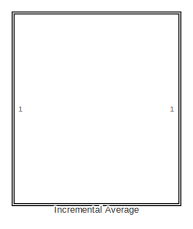
[diagram: root canvas - part 1/2, top center region]
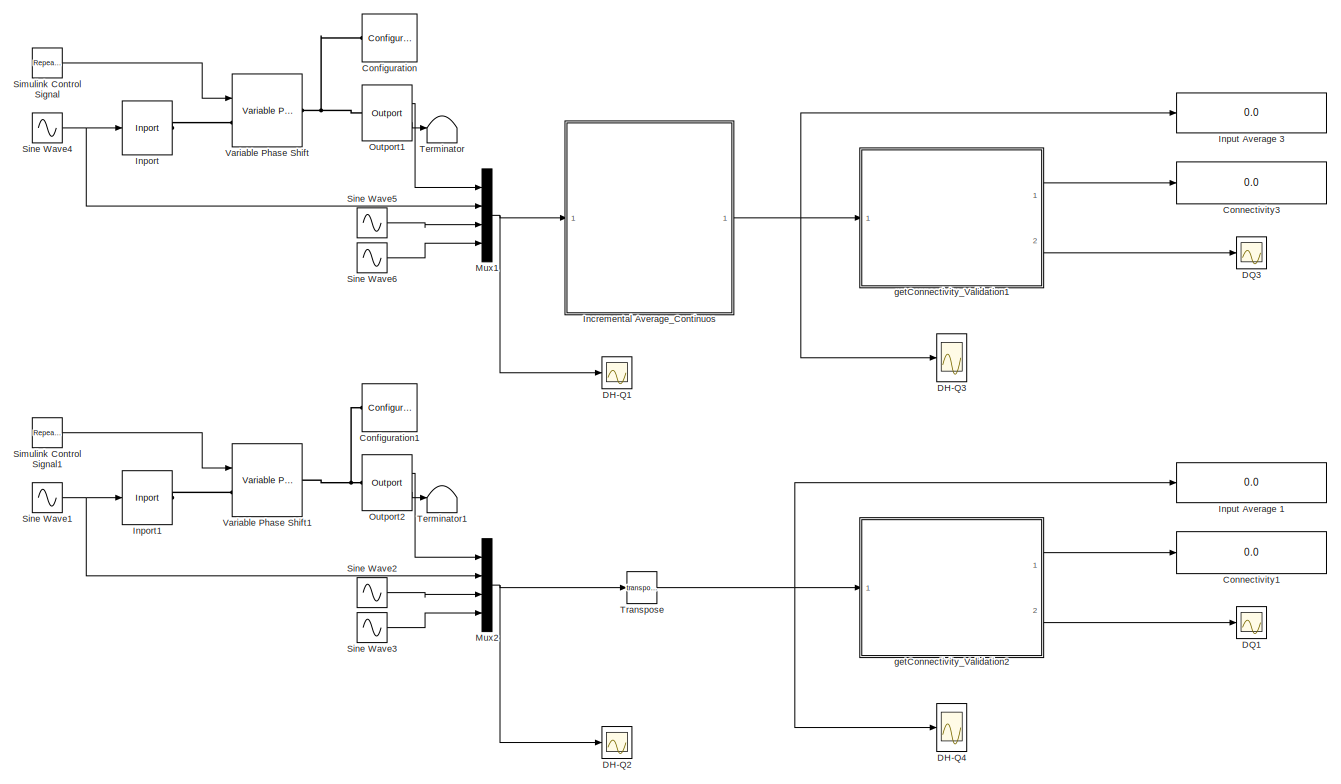
[diagram: root canvas - part 2/2, most of the canvas]
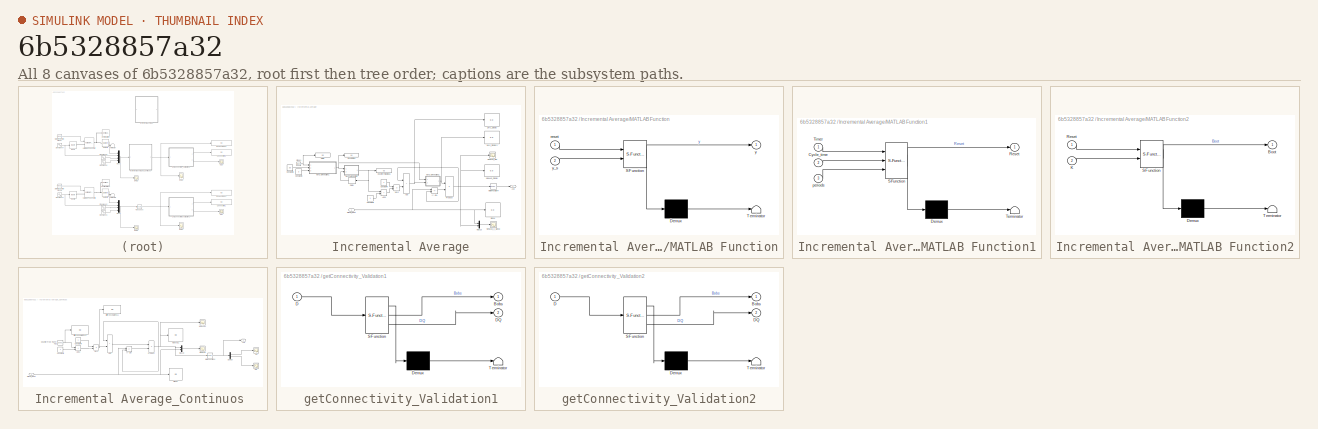
[diagram: thumbnail index - all 8 canvases of the model, root first then tree order]
MODEL slx_6b5328857a32
KIND model
CONFIG AbsTol = auto
CONFIG EnableMultiTasking = off
CONFIG FixedStep = auto
CONFIG MaxStep = auto
CONFIG MinStep = auto
CONFIG RelTol = 1e-3
CONFIG SampleTimeConstraint = Unconstrained
CONFIG SolverName = VariableStepAuto
CONFIG StartTime = 0.0
CONFIG StopTime = 90
BLOCK [Reference] Configuration  REF=simrfV2util1/Configuration
  Ports = [0, 0, 0, 0, 0, 1]
  SourceBlock = simrfV2util1/Configuration
  SourceProductBaseCode = RB
  SourceType = Configuration
BLOCK [Reference] Configuration1  REF=simrfV2util1/Configuration
  Ports = [0, 0, 0, 0, 0, 1]
  SourceBlock = simrfV2util1/Configuration
  SourceProductBaseCode = RB
  SourceType = Configuration
BLOCK [Display] Connectivity1
  Decimation = 1
  Ports = [1]
BLOCK [Display] Connectivity3
  Decimation = 1
  Ports = [1]
BLOCK [Scope] DH-Q1
  Floating = off
  NumInputPorts = 1
  Ports = [1]
  ScopeSpecificationString = Simulink.scopes.TimeScopeBlockCfg('CurrentConfiguration', extmgr.ConfigurationSet(extmgr.Configuration('Core','General UI',true),extmgr.Configuration('Core','Source UI',true),extmgr.Configuration('Sources','WiredSimulink',true,'DataLoggingVariableName','ScopeData1'),extmgr.Configuration('Visuals','Time Domain',true,'SerializedDisplays',{struct('MinYLimReal','-1.5','MaxYLimReal','1.5','YLabelReal',...<+1365ch>
BLOCK [Scope] DH-Q2
  Floating = off
  NumInputPorts = 1
  Ports = [1]
  ScopeSpecificationString = Simulink.scopes.TimeScopeBlockCfg('CurrentConfiguration', extmgr.ConfigurationSet(extmgr.Configuration('Core','General UI',true),extmgr.Configuration('Core','Source UI',true),extmgr.Configuration('Sources','WiredSimulink',true,'DataLoggingVariableName','ScopeData2'),extmgr.Configuration('Visuals','Time Domain',true,'SerializedDisplays',{struct('MinYLimReal','-1.5','MaxYLimReal','1.5','YLabelReal',...<+1365ch>
BLOCK [Scope] DH-Q3
  Floating = off
  NumInputPorts = 1
  Ports = [1]
  ScopeSpecificationString = Simulink.scopes.TimeScopeBlockCfg('CurrentConfiguration', extmgr.ConfigurationSet(extmgr.Configuration('Core','General UI',true),extmgr.Configuration('Core','Source UI',true),extmgr.Configuration('Sources','WiredSimulink',true,'DataLoggingVariableName','ScopeData1'),extmgr.Configuration('Visuals','Time Domain',true,'SerializedDisplays',{struct('MinYLimReal','-0.02507','MaxYLimReal','0.22545','YLab...<+1486ch>
BLOCK [Scope] DH-Q4
  Floating = off
  NumInputPorts = 1
  Ports = [1]
  ScopeSpecificationString = Simulink.scopes.TimeScopeBlockCfg('CurrentConfiguration', extmgr.ConfigurationSet(extmgr.Configuration('Core','General UI',true),extmgr.Configuration('Core','Source UI',true),extmgr.Configuration('Sources','WiredSimulink',true,'DataLoggingVariableName','ScopeData3'),extmgr.Configuration('Visuals','Time Domain',true,'SerializedDisplays',{struct('MinYLimReal','-0.18735','MaxYLimReal','0.24348','YLab...<+1486ch>
BLOCK [Scope] DQ1
  Floating = off
  NumInputPorts = 1
  Ports = [1]
  ScopeSpecificationString = Simulink.scopes.TimeScopeBlockCfg('CurrentConfiguration', extmgr.ConfigurationSet(extmgr.Configuration('Core','General UI',true,'FigureColor',[0 0 0]),extmgr.Configuration('Core','Source UI',true),extmgr.Configuration('Sources','WiredSimulink',true,'DataLoggingVariableName','ScopeData4'),extmgr.Configuration('Visuals','Time Domain',true,'SerializedDisplays',{struct('MinYLimReal','-1.45861','MaxYLi...<+2099ch>
BLOCK [Scope] DQ3
  Floating = off
  NumInputPorts = 1
  Ports = [1]
  ScopeSpecificationString = Simulink.scopes.TimeScopeBlockCfg('CurrentConfiguration', extmgr.ConfigurationSet(extmgr.Configuration('Core','General UI',true,'FigureColor',[0 0 0]),extmgr.Configuration('Core','Source UI',true),extmgr.Configuration('Sources','WiredSimulink',true),extmgr.Configuration('Visuals','Time Domain',true,'SerializedDisplays',{struct('MinYLimReal','-1.45861','MaxYLimReal','1.4954','YLabelReal','','MinYLi...<+2060ch>
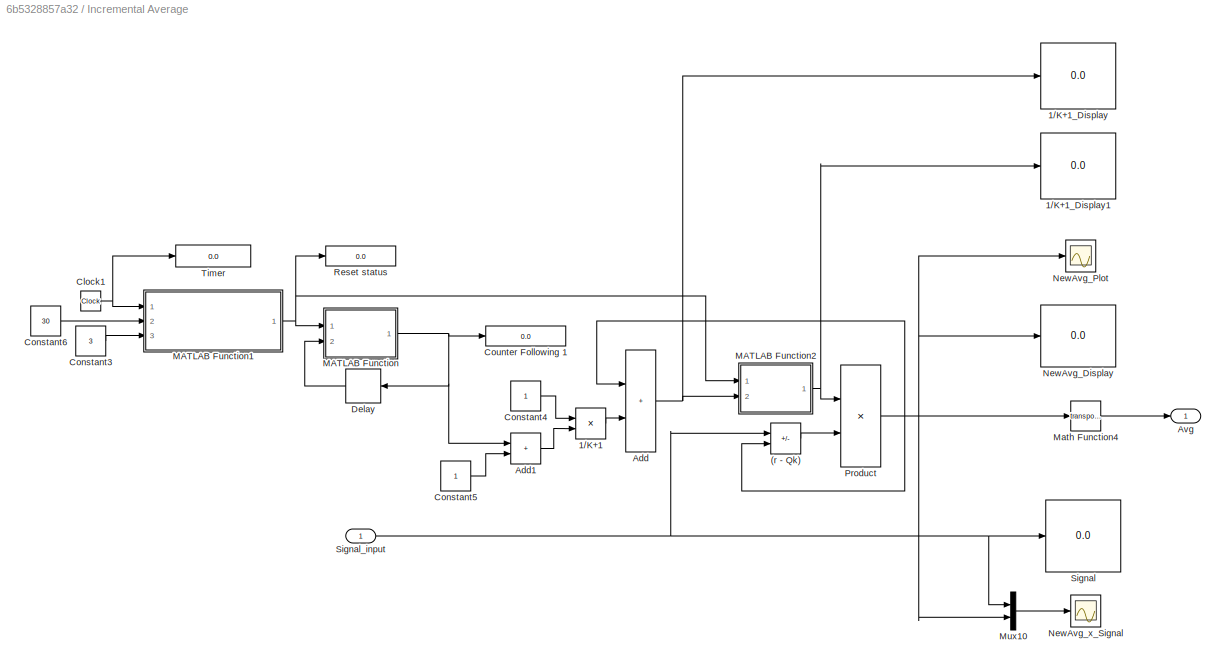
BLOCK [SubSystem] Incremental Average
  Commented = on
  Ports = [1, 1]
  RequestExecContextInheritance = off
BLOCK [Sum] Incremental Average/(r - Qk)
  IconShape = rectangular
  Inputs = +-
  Ports = [2, 1]
BLOCK [Product] Incremental Average/1//K+1
  Inputs = */
  Ports = [2, 1]
BLOCK [Display] Incremental Average/1//K+1_Display
  Decimation = 1
  Ports = [1]
BLOCK [Display] Incremental Average/1//K+1_Display1
  Decimation = 1
  Ports = [1]
BLOCK [Sum] Incremental Average/Add
  IconShape = rectangular
  Ports = [2, 1]
BLOCK [Sum] Incremental Average/Add1
  IconShape = rectangular
  Ports = [2, 1]
BLOCK [Outport] Incremental Average/Avg
BLOCK [Clock] Incremental Average/Clock1
BLOCK [Constant] Incremental Average/Constant3
  Value = 3
BLOCK [Constant] Incremental Average/Constant4
BLOCK [Constant] Incremental Average/Constant5
BLOCK [Constant] Incremental Average/Constant6
  Value = 30
BLOCK [Display] Incremental Average/Counter Following 1
  Decimation = 1
  Ports = [1]
BLOCK [Delay] Incremental Average/Delay
  DelayLength = 1
  InitialCondition = 0
  InputPortMap = u0
  Ports = [1, 1]
BLOCK [SubSystem] Incremental Average/MATLAB Function
  ErrorFcn = Stateflow.Translate.translate
  PermitHierarchicalResolution = ExplicitOnly
  Ports = [2, 1]
  RequestExecContextInheritance = off
  SFBlockType = MATLAB Function
  TreatAsAtomicUnit = on
BLOCK [Demux] Incremental Average/MATLAB Function/ Demux 
  Outputs = 1
  Ports = [1, 1]
BLOCK [S-Function] Incremental Average/MATLAB Function/ SFunction 
  EnableBusSupport = on
  FunctionName = sf_sfun
  PortCounts = [2 2]
  Ports = [2, 2]
  SFcnIsStateOwnerBlock = off
  SFunctionDeploymentMode = off
  Tag = Stateflow S-Function 1
BLOCK [Terminator] Incremental Average/MATLAB Function/ Terminator 
BLOCK [Inport] Incremental Average/MATLAB Function/reset
BLOCK [Outport] Incremental Average/MATLAB Function/y
BLOCK [Inport] Incremental Average/MATLAB Function/y_s
  Port = 2
BLOCK [SubSystem] Incremental Average/MATLAB Function1
  ErrorFcn = Stateflow.Translate.translate
  PermitHierarchicalResolution = ExplicitOnly
  Ports = [3, 1]
  RequestExecContextInheritance = off
  SFBlockType = MATLAB Function
  TreatAsAtomicUnit = on
BLOCK [Demux] Incremental Average/MATLAB Function1/ Demux 
  Outputs = 1
  Ports = [1, 1]
BLOCK [S-Function] Incremental Average/MATLAB Function1/ SFunction 
  EnableBusSupport = on
  FunctionName = sf_sfun
  PortCounts = [3 2]
  Ports = [3, 2]
  SFcnIsStateOwnerBlock = off
  SFunctionDeploymentMode = off
  Tag = Stateflow S-Function 2
BLOCK [Terminator] Incremental Average/MATLAB Function1/ Terminator 
BLOCK [Inport] Incremental Average/MATLAB Function1/Cycle_time
  Port = 2
BLOCK [Outport] Incremental Average/MATLAB Function1/Reset
BLOCK [Inport] Incremental Average/MATLAB Function1/Timer
BLOCK [Inport] Incremental Average/MATLAB Function1/periods
  Port = 3
BLOCK [SubSystem] Incremental Average/MATLAB Function2
  ErrorFcn = Stateflow.Translate.translate
  PermitHierarchicalResolution = ExplicitOnly
  Ports = [2, 1]
  RequestExecContextInheritance = off
  SFBlockType = MATLAB Function
  TreatAsAtomicUnit = on
BLOCK [Demux] Incremental Average/MATLAB Function2/ Demux 
  Outputs = 1
  Ports = [1, 1]
BLOCK [S-Function] Incremental Average/MATLAB Function2/ SFunction 
  EnableBusSupport = on
  FunctionName = sf_sfun
  PortCounts = [2 2]
  Ports = [2, 2]
  SFcnIsStateOwnerBlock = off
  SFunctionDeploymentMode = off
  Tag = Stateflow S-Function 10
BLOCK [Terminator] Incremental Average/MATLAB Function2/ Terminator 
BLOCK [Outport] Incremental Average/MATLAB Function2/Boot
BLOCK [Inport] Incremental Average/MATLAB Function2/K
  Port = 2
BLOCK [Inport] Incremental Average/MATLAB Function2/Reset
BLOCK [Math] Incremental Average/Math Function4
  Operator = transpose
  Ports = [1, 1]
BLOCK [Mux] Incremental Average/Mux10
  DisplayOption = bar
  Inputs = 2
  Ports = [2, 1]
BLOCK [Display] Incremental Average/NewAvg_Display
  Decimation = 1
  Ports = [1]
BLOCK [Scope] Incremental Average/NewAvg_Plot
  Floating = off
  NumInputPorts = 1
  Ports = [1]
  ScopeSpecificationString = Simulink.scopes.TimeScopeBlockCfg('CurrentConfiguration', extmgr.ConfigurationSet(extmgr.Configuration('Core','General UI',true,'FigureColor',[0 0 0]),extmgr.Configuration('Core','Source UI',true),extmgr.Configuration('Sources','WiredSimulink',true,'DataLoggingVariableName','ScopeData3'),extmgr.Configuration('Visuals','Time Domain',true,'SerializedDisplays',{struct('MinYLimReal','-0.02507','MaxYLi...<+2036ch>
BLOCK [Scope] Incremental Average/NewAvg_x_Signal
  Floating = off
  NumInputPorts = 1
  Ports = [1]
  ScopeSpecificationString = Simulink.scopes.TimeScopeBlockCfg('CurrentConfiguration', extmgr.ConfigurationSet(extmgr.Configuration('Core','General UI',true,'FigureColor',[0 0 0]),extmgr.Configuration('Core','Source UI',true),extmgr.Configuration('Sources','WiredSimulink',true,'DataLoggingVariableName','ScopeData1'),extmgr.Configuration('Visuals','Time Domain',true,'SerializedDisplays',{struct('MinYLimReal','-1.5','MaxYLimRea...<+2064ch>
BLOCK [Product] Incremental Average/Product
  Ports = [2, 1]
BLOCK [Display] Incremental Average/Reset status
  Decimation = 1
  Ports = [1]
BLOCK [Display] Incremental Average/Signal
  Decimation = 1
  Ports = [1]
BLOCK [Inport] Incremental Average/Signal_input
BLOCK [Display] Incremental Average/Timer
  Decimation = 1
  Ports = [1]
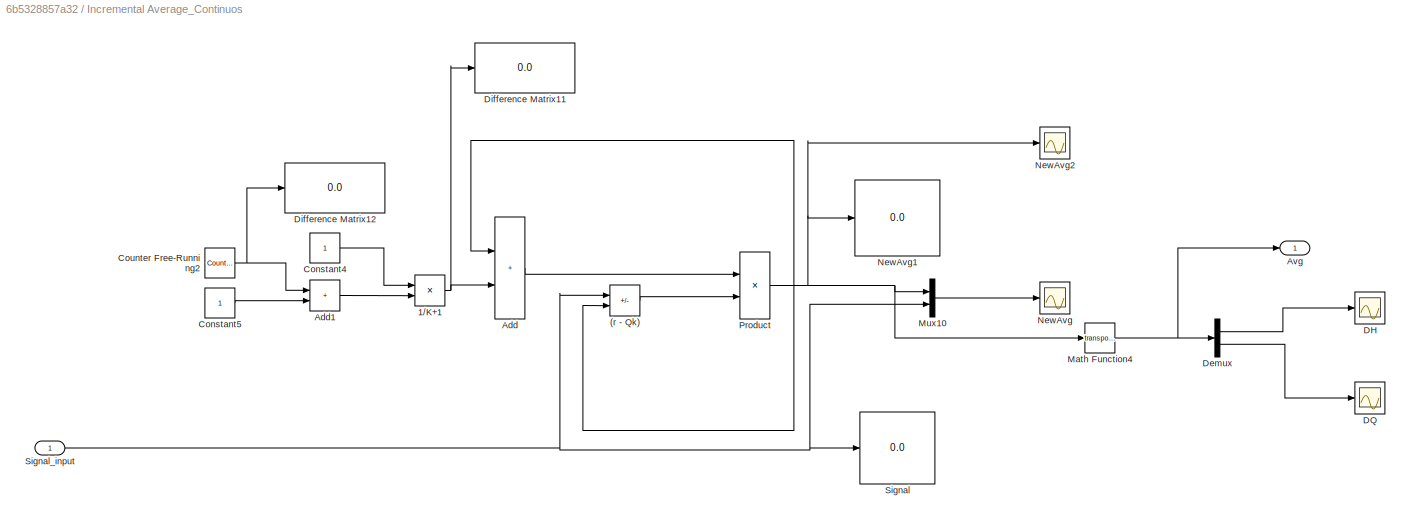
BLOCK [SubSystem] Incremental Average_Continuos 
  Ports = [1, 1]
  RequestExecContextInheritance = off
BLOCK [Sum] Incremental Average_Continuos /(r - Qk)
  IconShape = rectangular
  Inputs = +-
  Ports = [2, 1]
BLOCK [Product] Incremental Average_Continuos /1//K+1
  Inputs = */
  Ports = [2, 1]
BLOCK [Sum] Incremental Average_Continuos /Add
  IconShape = rectangular
  Ports = [2, 1]
BLOCK [Sum] Incremental Average_Continuos /Add1
  IconShape = rectangular
  Ports = [2, 1]
BLOCK [Outport] Incremental Average_Continuos /Avg
BLOCK [Constant] Incremental Average_Continuos /Constant4
BLOCK [Constant] Incremental Average_Continuos /Constant5
BLOCK [Reference] Incremental Average_Continuos /Counter Free-Running2  REF=simulink/Sources/Counter
Free-Running
  Ports = [0, 1]
  SourceBlock = simulink/Sources/Counter\nFree-Running
  SourceProductBaseCode = SL
  SourceType = Counter Free-Running
BLOCK [Scope] Incremental Average_Continuos /DH
  Floating = off
  NumInputPorts = 1
  Ports = [1]
  ScopeSpecificationString = Simulink.scopes.TimeScopeBlockCfg('CurrentConfiguration', extmgr.ConfigurationSet(extmgr.Configuration('Core','General UI',true,'FigureColor',[0 0 0]),extmgr.Configuration('Core','Source UI',true),extmgr.Configuration('Sources','WiredSimulink',true,'DataLoggingVariableName','ScopeData7'),extmgr.Configuration('Visuals','Time Domain',true,'SerializedDisplays',{struct('MinYLimReal','-0.00021','MaxYLi...<+2083ch>
BLOCK [Scope] Incremental Average_Continuos /DQ
  Floating = off
  NumInputPorts = 1
  Ports = [1]
  ScopeSpecificationString = Simulink.scopes.TimeScopeBlockCfg('CurrentConfiguration', extmgr.ConfigurationSet(extmgr.Configuration('Core','General UI',true,'FigureColor',[0 0 0]),extmgr.Configuration('Core','Source UI',true),extmgr.Configuration('Sources','WiredSimulink',true,'DataLoggingVariableName','ScopeData6'),extmgr.Configuration('Visuals','Time Domain',true,'SerializedDisplays',{struct('MinYLimReal','-0.00021','MaxYLi...<+2083ch>
BLOCK [Demux] Incremental Average_Continuos /Demux
  Outputs = 2
  Ports = [1, 2]
BLOCK [Display] Incremental Average_Continuos /Difference Matrix11
  Decimation = 1
  Ports = [1]
BLOCK [Display] Incremental Average_Continuos /Difference Matrix12
  Decimation = 1
  Ports = [1]
BLOCK [Math] Incremental Average_Continuos /Math Function4
  Operator = transpose
  Ports = [1, 1]
BLOCK [Mux] Incremental Average_Continuos /Mux10
  DisplayOption = bar
  Inputs = 2
  Ports = [2, 1]
BLOCK [Scope] Incremental Average_Continuos /NewAvg
  Floating = off
  NumInputPorts = 1
  Ports = [1]
  ScopeSpecificationString = Simulink.scopes.TimeScopeBlockCfg('CurrentConfiguration', extmgr.ConfigurationSet(extmgr.Configuration('Core','General UI',true,'FigureColor',[0 0 0]),extmgr.Configuration('Core','Source UI',true),extmgr.Configuration('Sources','WiredSimulink',true,'DataLoggingVariableName','ScopeData1'),extmgr.Configuration('Visuals','Time Domain',true,'SerializedDisplays',{struct('MinYLimReal','-0.00229','MaxYLi...<+2144ch>
BLOCK [Display] Incremental Average_Continuos /NewAvg1
  Decimation = 1
  Ports = [1]
BLOCK [Scope] Incremental Average_Continuos /NewAvg2
  Floating = off
  NumInputPorts = 1
  Ports = [1]
  ScopeSpecificationString = Simulink.scopes.TimeScopeBlockCfg('CurrentConfiguration', extmgr.ConfigurationSet(extmgr.Configuration('Core','General UI',true,'FigureColor',[0 0 0]),extmgr.Configuration('Core','Source UI',true),extmgr.Configuration('Sources','WiredSimulink',true,'DataLoggingVariableName','ScopeData3'),extmgr.Configuration('Visuals','Time Domain',true,'SerializedDisplays',{struct('MinYLimReal','-0.00021','MaxYLi...<+2083ch>
BLOCK [Product] Incremental Average_Continuos /Product
  Ports = [2, 1]
BLOCK [Display] Incremental Average_Continuos /Signal
  Decimation = 1
  Ports = [1]
BLOCK [Inport] Incremental Average_Continuos /Signal_input
BLOCK [Reference] Inport  REF=simrfV2util1/Inport
  Ports = [1, 0, 0, 0, 0, 0, 1]
  SourceBlock = simrfV2util1/Inport
  SourceProductBaseCode = RB
  SourceType = Inport
BLOCK [Reference] Inport1  REF=simrfV2util1/Inport
  Ports = [1, 0, 0, 0, 0, 0, 1]
  SourceBlock = simrfV2util1/Inport
  SourceProductBaseCode = RB
  SourceType = Inport
BLOCK [Display] Input Average 1
  Decimation = 1
  Ports = [1]
BLOCK [Display] Input Average 3
  Decimation = 1
  Ports = [1]
BLOCK [Mux] Mux1
  DisplayOption = bar
  Ports = [4, 1]
BLOCK [Mux] Mux2
  DisplayOption = bar
  Ports = [4, 1]
BLOCK [Reference] Outport1  REF=simrfV2util1/Outport
  Ports = [0, 2, 0, 0, 0, 1]
  SourceBlock = simrfV2util1/Outport
  SourceProductBaseCode = RB
  SourceType = Outport
BLOCK [Reference] Outport2  REF=simrfV2util1/Outport
  Ports = [0, 2, 0, 0, 0, 1]
  SourceBlock = simrfV2util1/Outport
  SourceProductBaseCode = RB
  SourceType = Outport
BLOCK [Reference] Simulink Control Signal  REF=simulink/Sources/Repeating
Sequence
Stair
  Ports = [0, 1]
  SourceBlock = simulink/Sources/Repeating\nSequence\nStair
  SourceProductBaseCode = SL
  SourceType = Repeating Sequence Stair
BLOCK [Reference] Simulink Control Signal1  REF=simulink/Sources/Repeating
Sequence
Stair
  Ports = [0, 1]
  SourceBlock = simulink/Sources/Repeating\nSequence\nStair
  SourceProductBaseCode = SL
  SourceType = Repeating Sequence Stair
BLOCK [Sin] Sine Wave1
  Amplitude = 1.2
  Ports = [0, 1]
  SampleTime = 0
BLOCK [Sin] Sine Wave2
  Frequency = 1.4
  Ports = [0, 1]
  SampleTime = 0
BLOCK [Sin] Sine Wave3
  Frequency = 1.4
  Ports = [0, 1]
  SampleTime = 0
BLOCK [Sin] Sine Wave4
  Amplitude = 1.2
  Ports = [0, 1]
  SampleTime = 0
BLOCK [Sin] Sine Wave5
  Frequency = 1.4
  Ports = [0, 1]
  SampleTime = 0
BLOCK [Sin] Sine Wave6
  Frequency = 1.4
  Ports = [0, 1]
  SampleTime = 0
BLOCK [Terminator] Terminator
BLOCK [Terminator] Terminator1
BLOCK [Math] Transpose
  Operator = transpose
  Ports = [1, 1]
BLOCK [Reference] Variable Phase Shift  REF=simrfV2elements/Variable
Phase Shift
  Ports = [1, 0, 0, 0, 0, 1, 1]
  SourceBlock = simrfV2elements/Variable\nPhase Shift
  SourceProductBaseCode = RB
  SourceType = Variable Phase
BLOCK [Reference] Variable Phase Shift1  REF=simrfV2elements/Variable
Phase Shift
  Ports = [1, 0, 0, 0, 0, 1, 1]
  SourceBlock = simrfV2elements/Variable\nPhase Shift
  SourceProductBaseCode = RB
  SourceType = Variable Phase
BLOCK [SubSystem] getConnectivity_Validation1
  ErrorFcn = Stateflow.Translate.translate
  PermitHierarchicalResolution = ExplicitOnly
  Ports = [1, 2]
  RequestExecContextInheritance = off
  SFBlockType = MATLAB Function
  SystemSampleTime = 0
  TreatAsAtomicUnit = on
BLOCK [Demux] getConnectivity_Validation1/ Demux 
  Outputs = 1
  Ports = [1, 1]
BLOCK [S-Function] getConnectivity_Validation1/ SFunction 
  EnableBusSupport = on
  FunctionName = sf_sfun
  PortCounts = [1 3]
  Ports = [1, 3]
  SFcnIsStateOwnerBlock = off
  SFunctionDeploymentMode = off
  Tag = Stateflow S-Function 16
BLOCK [Terminator] getConnectivity_Validation1/ Terminator 
BLOCK [Outport] getConnectivity_Validation1/Bobs
BLOCK [Inport] getConnectivity_Validation1/D 
BLOCK [Outport] getConnectivity_Validation1/DQ
  Port = 2
BLOCK [SubSystem] getConnectivity_Validation2
  ErrorFcn = Stateflow.Translate.translate
  PermitHierarchicalResolution = ExplicitOnly
  Ports = [1, 2]
  RequestExecContextInheritance = off
  SFBlockType = MATLAB Function
  SystemSampleTime = 0
  TreatAsAtomicUnit = on
BLOCK [Demux] getConnectivity_Validation2/ Demux 
  Outputs = 1
  Ports = [1, 1]
BLOCK [S-Function] getConnectivity_Validation2/ SFunction 
  EnableBusSupport = on
  FunctionName = sf_sfun
  PortCounts = [1 3]
  Ports = [1, 3]
  SFcnIsStateOwnerBlock = off
  SFunctionDeploymentMode = off
  Tag = Stateflow S-Function 6
BLOCK [Terminator] getConnectivity_Validation2/ Terminator 
BLOCK [Outport] getConnectivity_Validation2/Bobs
BLOCK [Inport] getConnectivity_Validation2/D 
BLOCK [Outport] getConnectivity_Validation2/DQ
  Port = 2
LINE Incremental Average/(r - Qk):1 -> Incremental Average/Product:2
LINE Incremental Average/1//K+1:1 -> Incremental Average/Add:2
LINE Incremental Average/Add1:1 -> Incremental Average/1//K+1:2
NET Incremental Average/Add:1 -> Incremental Average/1//K+1_Display:1, Incremental Average/MATLAB Function2:2
NET Incremental Average/Clock1:1 -> Incremental Average/MATLAB Function1:1, Incremental Average/Timer:1
LINE Incremental Average/Constant3:1 -> Incremental Average/MATLAB Function1:3
LINE Incremental Average/Constant4:1 -> Incremental Average/1//K+1:1
LINE Incremental Average/Constant5:1 -> Incremental Average/Add1:2
LINE Incremental Average/Constant6:1 -> Incremental Average/MATLAB Function1:2
LINE Incremental Average/Delay:1 -> Incremental Average/MATLAB Function:2
NET Incremental Average/MATLAB Function1:1 -> Incremental Average/MATLAB Function2:1, Incremental Average/MATLAB Function:1, Incremental Average/Reset status:1
NET Incremental Average/MATLAB Function2:1 -> Incremental Average/1//K+1_Display1:1, Incremental Average/Product:1
NET Incremental Average/MATLAB Function:1 -> Incremental Average/Add1:1, Incremental Average/Counter Following 1:1, Incremental Average/Delay:1
LINE Incremental Average/Math Function4:1 -> Incremental Average/Avg:1
LINE Incremental Average/Mux10:1 -> Incremental Average/NewAvg_x_Signal:1
NET Incremental Average/Product:1 -> Incremental Average/(r - Qk):2, Incremental Average/Add:1, Incremental Average/Math Function4:1, Incremental Average/Mux10:2, Incremental Average/NewAvg_Display:1, Incremental Average/NewAvg_Plot:1
NET Incremental Average/Signal_input:1 -> Incremental Average/(r - Qk):1, Incremental Average/Mux10:1, Incremental Average/Signal:1
LINE Incremental Average_Continuos /(r - Qk):1 -> Incremental Average_Continuos /Product:2
NET Incremental Average_Continuos /1//K+1:1 -> Incremental Average_Continuos /Add:2, Incremental Average_Continuos /Difference Matrix11:1
LINE Incremental Average_Continuos /Add1:1 -> Incremental Average_Continuos /1//K+1:2
LINE Incremental Average_Continuos /Add:1 -> Incremental Average_Continuos /Product:1
LINE Incremental Average_Continuos /Constant4:1 -> Incremental Average_Continuos /1//K+1:1
LINE Incremental Average_Continuos /Constant5:1 -> Incremental Average_Continuos /Add1:2
NET Incremental Average_Continuos /Counter Free-Running2:1 -> Incremental Average_Continuos /Add1:1, Incremental Average_Continuos /Difference Matrix12:1
LINE Incremental Average_Continuos /Demux:1 -> Incremental Average_Continuos /DH:1
LINE Incremental Average_Continuos /Demux:2 -> Incremental Average_Continuos /DQ:1
NET Incremental Average_Continuos /Math Function4:1 -> Incremental Average_Continuos /Avg:1, Incremental Average_Continuos /Demux:1
LINE Incremental Average_Continuos /Mux10:1 -> Incremental Average_Continuos /NewAvg:1
NET Incremental Average_Continuos /Product:1 -> Incremental Average_Continuos /(r - Qk):2, Incremental Average_Continuos /Add:1, Incremental Average_Continuos /Math Function4:1, Incremental Average_Continuos /Mux10:1, Incremental Average_Continuos /NewAvg1:1, Incremental Average_Continuos /NewAvg2:1
NET Incremental Average_Continuos /Signal_input:1 -> Incremental Average_Continuos /(r - Qk):1, Incremental Average_Continuos /Mux10:2, Incremental Average_Continuos /Signal:1
NET Incremental Average_Continuos :1 -> DH-Q3:1, Input Average 3:1, getConnectivity_Validation1:1
NET Mux1:1 -> DH-Q1:1, Incremental Average_Continuos :1
NET Mux2:1 -> DH-Q2:1, Transpose:1
LINE Outport1:1 -> Mux1:1
LINE Outport1:2 -> Terminator:1
LINE Outport2:1 -> Mux2:1
LINE Outport2:2 -> Terminator1:1
LINE Simulink Control Signal1:1 -> Variable Phase Shift1:1
LINE Simulink Control Signal:1 -> Variable Phase Shift:1
NET Sine Wave1:1 -> Inport1:1, Mux2:2
LINE Sine Wave2:1 -> Mux2:3
LINE Sine Wave3:1 -> Mux2:4
NET Sine Wave4:1 -> Inport:1, Mux1:2
LINE Sine Wave5:1 -> Mux1:3
LINE Sine Wave6:1 -> Mux1:4
NET Transpose:1 -> DH-Q4:1, Input Average 1:1, getConnectivity_Validation2:1
LINE getConnectivity_Validation1:1 -> Connectivity3:1
LINE getConnectivity_Validation1:2 -> DQ3:1
LINE getConnectivity_Validation2:1 -> Connectivity1:1
LINE getConnectivity_Validation2:2 -> DQ1:1
PNET net1: Configuration1:LConn1 -- Outport2:LConn1 -- Variable Phase Shift1:RConn1
PNET net2: Configuration:LConn1 -- Outport1:LConn1 -- Variable Phase Shift:RConn1
PLINE Inport1:RConn1 -- Variable Phase Shift1:LConn1
PLINE Inport:RConn1 -- Variable Phase Shift:LConn1
note: NET lines group one-source signal fan-out (src -> all destinations, sorted); 1:1 wires keep LINE; PNET lines group multi-terminal physical nets as a canonical sorted terminal list (undirected conserving connections); 2-terminal nets keep the pairwise PLINE form
CHART Incremental Average/MATLAB Function states=1 transitions=1
  STATE_LABEL 'eML_blk_kernel()'
  STATE_LABEL 'SCRIPT:\nfunction y = fcn(reset, y_s)\n\nif reset == 1\n    y = 0;\nelse \n    y = y_s + 1;\nend \n'
CHART Incremental Average/MATLAB Function1 states=1 transitions=1
  STATE_LABEL 'eML_blk_kernel()'
  STATE_LABEL 'SCRIPT:\nfunction Reset  = fcn(Timer, Cycle_time, periods)\n\ntemp = 0;\nPCycles = zeros(periods,1);\nfor i = 1:periods\n    PCycles(i) = i * Cycle_time;\n    if (Timer >= PCycles(i) && Timer <= PCycles(i)+1)\n        temp = 1;\n        break\n    else\n        temp = 0;\n    end\nend \nReset = temp;'
CHART getConnectivity_Validation2 states=1 transitions=1
  STATE_LABEL 'eML_blk_kernel()'
  STATE_LABEL 'SCRIPT:\nfunction [Bobs,DQ]  = getConnectivity(D)\n\n    DQ = zeros(1, 2);\n    DQ(1,1)=D(1,1);\n    DQ(1,2)=D(1,2);\n\n\n    DH = zeros(1,2);\n    DH(1,1)=D(1,3);\n    DH(1,2)=D(1,4);\n\n    rThresh= 0.6; % [0..1] A threshold on the correlation.\n\n    [nSamples, nChannels, nHb]=size(DQ);\n\n    C = nan(nChannels, nChannels, nHb); %Matrix of channel pairwise correlations;\n\n    %This part of the algorithm is HIGH...<+579ch>'
CHART Incremental Average/MATLAB Function2 states=1 transitions=1
  STATE_LABEL 'eML_blk_kernel()'
  STATE_LABEL 'SCRIPT:\nfunction Boot = fcn(Reset, K)\n\n    temp = ones(4, 1);\n    Boot = [0;0;0;0];\n    if Reset == 1\n        temp = Boot;\n    else \n        temp = K;\n    end \n\n    Boot = temp;\n'
CHART getConnectivity_Validation1 states=1 transitions=1
  STATE_LABEL 'eML_blk_kernel()'
  STATE_LABEL 'SCRIPT:\nfunction [Bobs,DQ]  = getConnectivity(D)\n\n    DQ = zeros(1, 2);\n    DQ(1,1)=D(1,1);\n    DQ(1,2)=D(1,2);\n\n\n    DH = zeros(1,2);\n    DH(1,1)=D(1,3);\n    DH(1,2)=D(1,4);\n\n    rThresh= 0.6; % [0..1] A threshold on the correlation.\n\n    [nSamples, nChannels, nHb]=size(DQ);\n\n    C = nan(nChannels, nChannels, nHb); %Matrix of channel pairwise correlations;\n\n    %This part of the algorithm is HIGH...<+579ch>'
CHART  states=0 transitions=0
CHART  states=0 transitions=0
CHART  states=0 transitions=0
CHART  states=0 transitions=0
CHART  states=0 transitions=0
